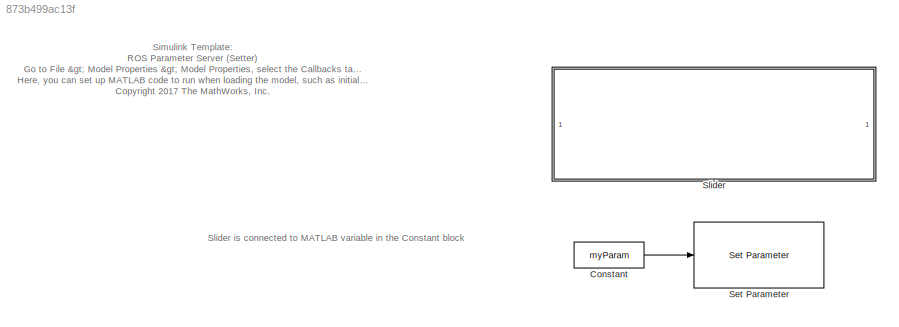
MODEL slx_873b499ac13f
KIND model
CONFIG AbsTol = auto
CONFIG EnableMultiTasking = off
CONFIG FixedStep = auto
CONFIG MaxStep = auto
CONFIG MinStep = auto
CONFIG PreLoadFcn = % ROS setup\nrosshutdown;\nipAddr = '';\nrosinit(ipAddr)\n\n% Sample times\nsampleTime = 0.2;\n\n% Control parameters\nmyParam = 3.5;
CONFIG RelTol = 1e-3
CONFIG SampleTimeConstraint = Unconstrained
CONFIG Solver = VariableStepAuto
CONFIG SolverName = VariableStepAuto
CONFIG StartTime = 0.0
CONFIG StopTime = inf
BLOCK [Constant] Constant
  Value = myParam
BLOCK [Reference] Set Parameter  REF=robotlib/Set Parameter
  Ports = [1]
  SourceBlock = robotlib/Set Parameter
  SourceLibraryInfo = This block requires Robotics System Toolbox
  SourceProductBaseCode = RO
  SourceProductName = Robotics System Toolbox
  SourceType = ROS Set Parameter
BLOCK [SubSystem] Slider
  DialogController = hmiCreateDDGDialog
  IsWebBlock = on
  MaskHideContents = on
  Ports = []
  RequestExecContextInheritance = off
  Variant = off
ANNOTATION (root): Simulink Template: ROS Parameter Server (Setter) Go to File > Model Properties > Model Properties , select the Callbacks tab, and go to PreLoadFcn . Here, you can set up MATLAB code to run when loading the model, such as initializing ROS and loading parameters. <copyright redacted>
ANNOTATION (root): Slider is connected to MATLAB variable in the Constant block
LINE Constant:1 -> Set Parameter:1
